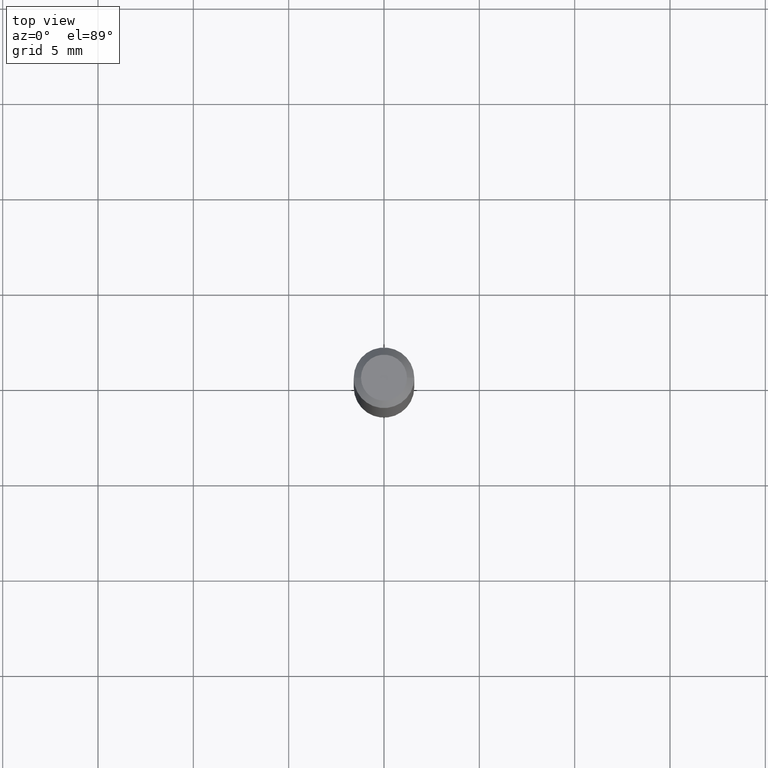
[diagram: clean part render]
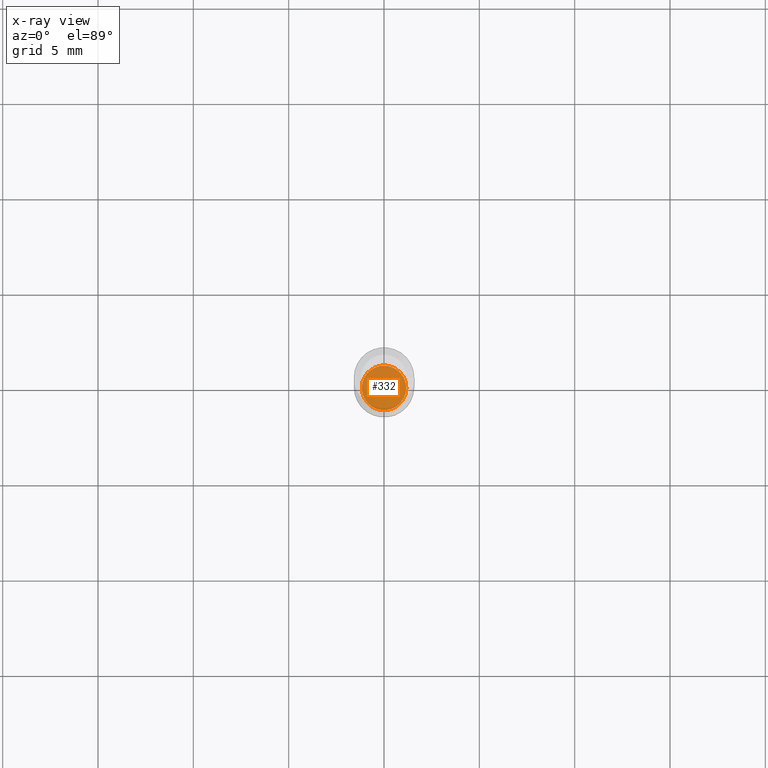
[diagram: x-ray — body ghosted, one internal face saturated and labeled with its STEP entity id]
A machine part, top view, then the same camera in x-ray: the body is ghosted and one INTERNAL B-rep face — a face not visible from any outside direction — is saturated and labeled: STEP entity #332.
In plain terms, the highlighted planar face has unit normal (-0, 0, 1).
Its self-contained STEP definition (entity closure, byte-faithful):
#1 = VERTEX_POINT ( 'NONE', #220 ) ;
#6 = DIRECTION ( 'NONE',  ( -2.445468806185136597E-29, 3.491481338843145583E-15, 1.000000000000000000 ) ) ;
#23 = EDGE_CURVE ( 'NONE', #461, #1, #232, .T. ) ;
#25 = AXIS2_PLACEMENT_3D ( 'NONE', #78, #6, #266 ) ;
#76 = CARTESIAN_POINT ( 'NONE',  ( 0.04599999999999999922, -4.584314997901049810E-15, -1.221000000000000085 ) ) ;
#78 = CARTESIAN_POINT ( 'NONE',  ( 2.985917412352052273E-29, -4.263098714727481320E-15, -1.221000000000000085 ) ) ;
#79 = ORIENTED_EDGE ( 'NONE', *, *, #23, .F. ) ;
#94 = DIRECTION ( 'NONE',  ( 1.000000000000000000, -6.982962677686269866E-15, 0.000000000000000000 ) ) ;
#97 = PLANE ( 'NONE',  #251 ) ;
#135 = DIRECTION ( 'NONE',  ( 1.000000000000000000, -6.982962677686265922E-15, 4.876176775795935793E-29 ) ) ;
#168 = CARTESIAN_POINT ( 'NONE',  ( 2.985917412352052273E-29, -4.263098714727481320E-15, -1.221000000000000085 ) ) ;
#170 = AXIS2_PLACEMENT_3D ( 'NONE', #168, #310, #94 ) ;
#208 = DIRECTION ( 'NONE',  ( -2.438088387897960049E-29, 3.491481338843145188E-15, 1.000000000000000000 ) ) ;
#220 = CARTESIAN_POINT ( 'NONE',  ( -0.04599999999999999922, -3.933599829103724532E-15, -1.221000000000000085 ) ) ;
#232 = CIRCLE ( 'NONE', #170, 0.04599999999999999922 ) ;
#234 = CIRCLE ( 'NONE', #25, 0.04599999999999999922 ) ;
#248 = ORIENTED_EDGE ( 'NONE', *, *, #419, .F. ) ;
#251 = AXIS2_PLACEMENT_3D ( 'NONE', #328, #208, #135 ) ;
#256 = EDGE_LOOP ( 'NONE', ( #79, #248 ) ) ;
#266 = DIRECTION ( 'NONE',  ( 1.000000000000000000, -6.982962677686269866E-15, 0.000000000000000000 ) ) ;
#310 = DIRECTION ( 'NONE',  ( -2.445468806185136597E-29, 3.491481338843145583E-15, 1.000000000000000000 ) ) ;
#328 = CARTESIAN_POINT ( 'NONE',  ( 2.985917412352052273E-29, -4.263098714727481320E-15, -1.221000000000000085 ) ) ;
#332 = ADVANCED_FACE ( 'NONE', ( #455 ), #97, .F. ) ;
#419 = EDGE_CURVE ( 'NONE', #1, #461, #234, .T. ) ;
#455 = FACE_OUTER_BOUND ( 'NONE', #256, .T. ) ;
#461 = VERTEX_POINT ( 'NONE', #76 ) ;